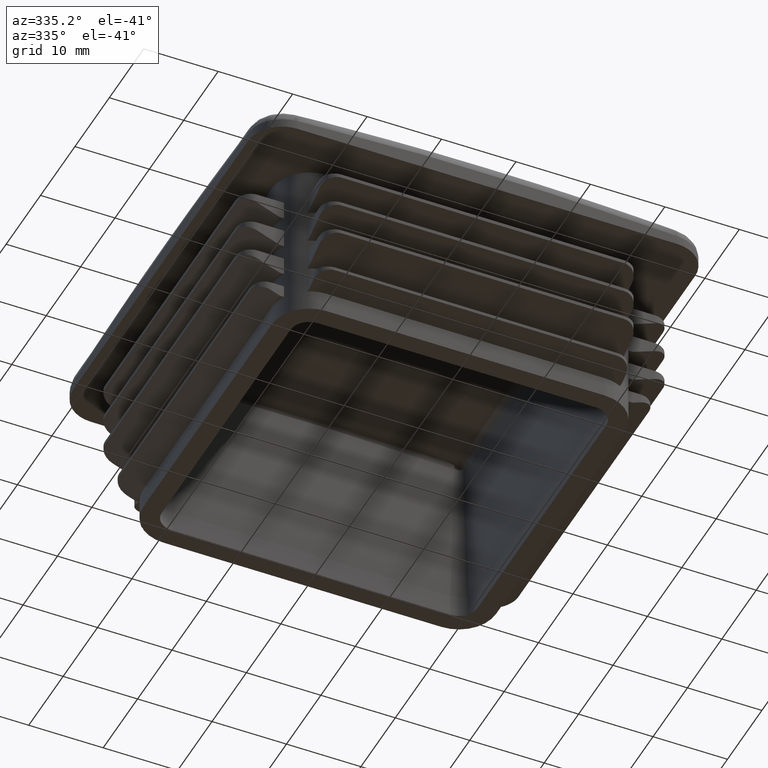
[diagram: clean part render]
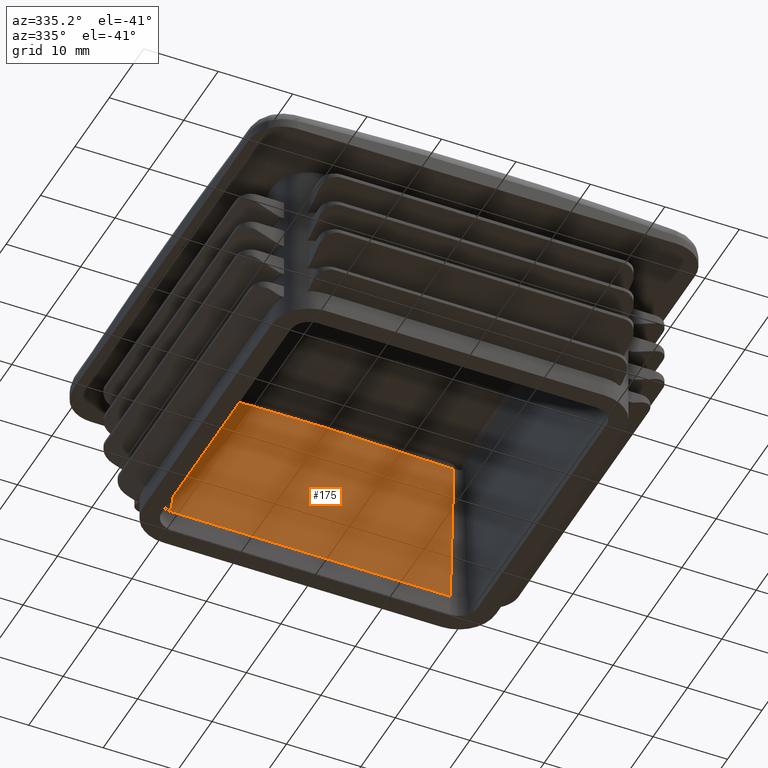
[diagram: same view with one face highlighted and labeled with its STEP entity id]
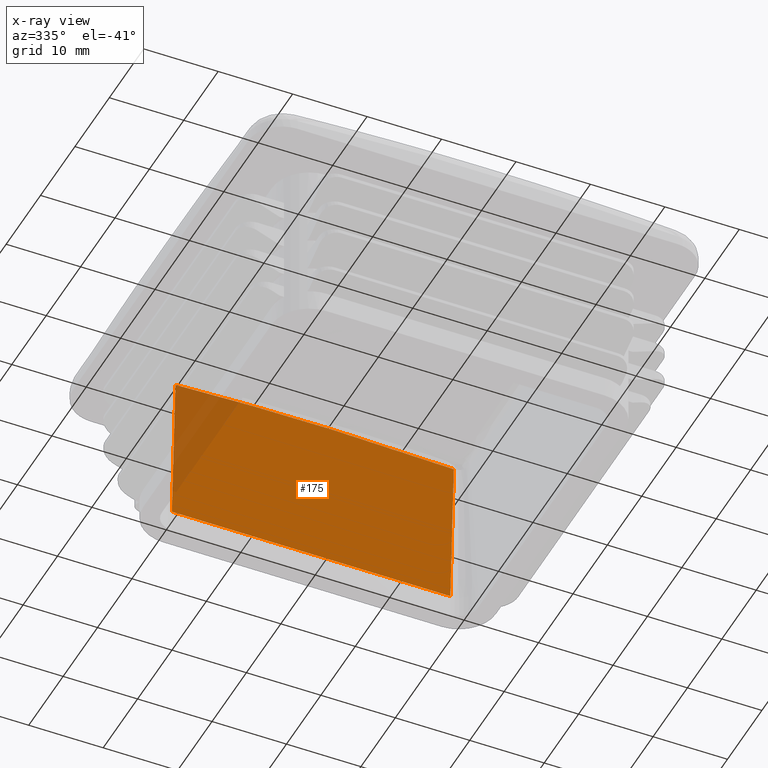
[diagram: x-ray of the same camera — body ghosted, the highlighted face saturated]
A machine part, auxiliary view. The second image highlights one B-rep face of the part: STEP entity #175.
The next image is the same camera in x-ray: the body ghosted, the highlighted face saturated — about 10% of this face is hidden behind the body in this view.
In plain terms, the highlighted planar face has unit normal (0, 0.9986, 0.0523).
Its self-contained STEP definition (entity closure, byte-faithful):
#175 = ADVANCED_FACE( '', ( #576 ), #577, .F. );
#576 = FACE_OUTER_BOUND( '', #3276, .T. );
#577 = PLANE( '', #3277 );
#3276 = EDGE_LOOP( '', ( #4471, #4472, #4473, #4474 ) );
#3277 = AXIS2_PLACEMENT_3D( '', #4475, #4476, #4477 );
#4471 = ORIENTED_EDGE( '', *, *, #6304, .F. );
#4472 = ORIENTED_EDGE( '', *, *, #6151, .T. );
#4473 = ORIENTED_EDGE( '', *, *, #6301, .T. );
#4474 = ORIENTED_EDGE( '', *, *, #6305, .F. );
#4475 = CARTESIAN_POINT( '', ( -18.7000000000000, 21.2000000000000, 3.00000000000000 ) );
#4476 = DIRECTION( '', ( 0.000000000000000, 0.998629534754574, 0.0523359562429438 ) );
#4477 = DIRECTION( '', ( 0.000000000000000, -0.0523359562429438, 0.998629534754574 ) );
#6151 = EDGE_CURVE( '', #7055, #7050, #7056, .T. );
#6301 = EDGE_CURVE( '', #7050, #7305, #7306, .T. );
#6304 = EDGE_CURVE( '', #7055, #7309, #7310, .T. );
#6305 = EDGE_CURVE( '', #7309, #7305, #7311, .T. );
#7050 = VERTEX_POINT( '', #9985 );
#7055 = VERTEX_POINT( '', #10064 );
#7056 = B_SPLINE_CURVE_WITH_KNOTS( '', 3, ( #10065, #10066, #10067, #10068, #10069, #10070, #10071, #10072, #10073, #10074, #10075, #10076, #10077, #10078, #10079 ), .UNSPECIFIED., .F., .F., ( 4, 2, 2, 1, 2, 2, 2, 4 ), ( 0.000000000000000, 0.00935080818694337, 0.0140262122804151, 0.0187016163738867, 0.0233770204673584, 0.0257147225140943, 0.0280524245608301, 0.0374032327477735 ), .UNSPECIFIED. );
#7305 = VERTEX_POINT( '', #10821 );
#7306 = LINE( '', #10822, #10823 );
#7309 = VERTEX_POINT( '', #10827 );
#7310 = LINE( '', #10828, #10829 );
#7311 = LINE( '', #10830, #10831 );
#9985 = CARTESIAN_POINT( '', ( -18.7000000000000, 20.1682000427587, 22.6879160185137 ) );
#10064 = CARTESIAN_POINT( '', ( 18.7000000000000, 20.1682000427587, 22.6879160185136 ) );
#10065 = CARTESIAN_POINT( '', ( 18.7000000000000, 20.1682000427587, 22.6879160185137 ) );
#10066 = CARTESIAN_POINT( '', ( 15.5846863175075, 20.1606388231071, 22.8321926842124 ) );
#10067 = CARTESIAN_POINT( '', ( 12.4688943965452, 20.1549921674018, 22.9399372935523 ) );
#10068 = CARTESIAN_POINT( '', ( 7.79449858085184, 20.1493563042191, 23.0474759692956 ) );
#10069 = CARTESIAN_POINT( '', ( 6.23624870114759, 20.1479498447853, 23.0743128139971 ) );
#10070 = CARTESIAN_POINT( '', ( 3.11951457715097, 20.1460751732967, 23.1100836769160 ) );
#10071 = CARTESIAN_POINT( '', ( 0.00254614259017705, 20.1451385329093, 23.1279558401759 ) );
#10072 = CARTESIAN_POINT( '', ( -3.11488973225981, 20.1460732273922, 23.1101208069866 ) );
#10073 = CARTESIAN_POINT( '', ( -5.45314252860102, 20.1474784012321, 23.0833084928768 ) );
#10074 = CARTESIAN_POINT( '', ( -6.23258945339320, 20.1480641952899, 23.0721308763879 ) );
#10075 = CARTESIAN_POINT( '', ( -7.79154215429244, 20.1494713867977, 23.0452800628832 ) );
#10076 = CARTESIAN_POINT( '', ( -8.57107115957398, 20.1502928245066, 23.0296060976778 ) );
#10077 = CARTESIAN_POINT( '', ( -12.4681998990622, 20.1549904674975, 22.9399697296585 ) );
#10078 = CARTESIAN_POINT( '', ( -15.5847056762037, 20.1606388700928, 22.8321917876709 ) );
#10079 = CARTESIAN_POINT( '', ( -18.7000000000000, 20.1682000427587, 22.6879160185137 ) );
#10821 = CARTESIAN_POINT( '', ( -18.7000000000000, 21.2000000000000, 3.00000000000000 ) );
#10822 = CARTESIAN_POINT( '', ( -18.7000000000000, 21.2000000000000, 3.00000000000000 ) );
#10823 = VECTOR( '', #12122, 1000.00000000000 );
#10827 = CARTESIAN_POINT( '', ( 18.7000000000000, 21.2000000000000, 3.00000000000000 ) );
#10828 = CARTESIAN_POINT( '', ( 18.7000000000000, 21.2000000000000, 3.00000000000000 ) );
#10829 = VECTOR( '', #12127, 1000.00000000000 );
#10830 = CARTESIAN_POINT( '', ( 18.7000000000000, 21.2000000000000, 3.00000000000000 ) );
#10831 = VECTOR( '', #12128, 1000.00000000000 );
#12122 = DIRECTION( '', ( -7.26307295458638E-017, 0.0523359562429438, -0.998629534754574 ) );
#12127 = DIRECTION( '', ( 0.000000000000000, 0.0523359562429438, -0.998629534754574 ) );
#12128 = DIRECTION( '', ( -1.00000000000000, 0.000000000000000, 0.000000000000000 ) );